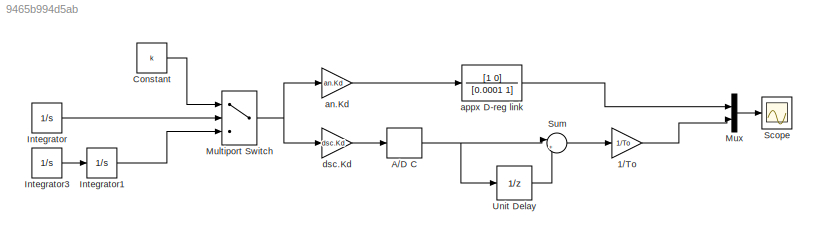
MODEL slx_9465b994d5ab
KIND model
CONFIG AbsTol = auto
CONFIG EnableMultiTasking = off
CONFIG FixedStep = To/100
CONFIG MaxStep = To/100
CONFIG MinStep = auto
CONFIG RelTol = 1e-3
CONFIG SampleTimeConstraint = Unconstrained
CONFIG SolverName = ode23tb
CONFIG StartTime = 0.0
CONFIG StopTime = Tmdl
BLOCK [Gain] 1//To
  Gain = 1/To
BLOCK [ZeroOrderHold] A//D C
  SampleTime = To
BLOCK [Constant] Constant
  Value = k
BLOCK [Integrator] Integrator
  InitialCondition = 1
BLOCK [Integrator] Integrator1
BLOCK [Integrator] Integrator3
  InitialCondition = 1
BLOCK [MultiPortSwitch] Multiport Switch
  InputSameDT = off
  Inputs = 2
  SaturateOnIntegerOverflow = off
BLOCK [Mux] Mux
  DisplayOption = bar
  Inputs = 2
BLOCK [Scope] Scope
  Floating = off
  NumInputPorts = 1
  ScopeSpecificationString = Simulink.scopes.TimeScopeBlockCfg('CurrentConfiguration', extmgr.ConfigurationSet(extmgr.Configuration('Core','General UI',true),extmgr.Configuration('Core','Source UI',true),extmgr.Configuration('Sources','WiredSimulink',true,'DataLoggingVariableName','y','DataLogging',true,'DataLoggingSaveFormat','Array'),extmgr.Configuration('Visuals','Time Domain',true,'SerializedDisplays',{struct('MinYLimReal...<+1392ch>
BLOCK [Sum] Sum
  Inputs = |+-
BLOCK [UnitDelay] Unit Delay
  HasFrameUpgradeWarning = on
  SampleTime = To
BLOCK [Gain] an.Kd
  Gain = an.Kd
BLOCK [TransferFcn] appx D-reg link
  Denominator = [0.0001 1]
  Numerator = [1 0]
BLOCK [Gain] dsc.Kd
  Gain = dsc.Kd
LINE 1//To:1 -> Mux:2
NET A//D C:1 -> Sum:1, Unit Delay:1
LINE Constant:1 -> Multiport Switch:1
LINE Integrator1:1 -> Multiport Switch:3
LINE Integrator3:1 -> Integrator1:1
LINE Integrator:1 -> Multiport Switch:2
NET Multiport Switch:1 -> an.Kd:1, dsc.Kd:1
LINE Mux:1 -> Scope:1
LINE Sum:1 -> 1//To:1
LINE Unit Delay:1 -> Sum:2
LINE an.Kd:1 -> appx D-reg link:1
LINE appx D-reg link:1 -> Mux:1
LINE dsc.Kd:1 -> A//D C:1
note: NET lines group one-source signal fan-out (src -> all destinations, sorted); 1:1 wires keep LINE
